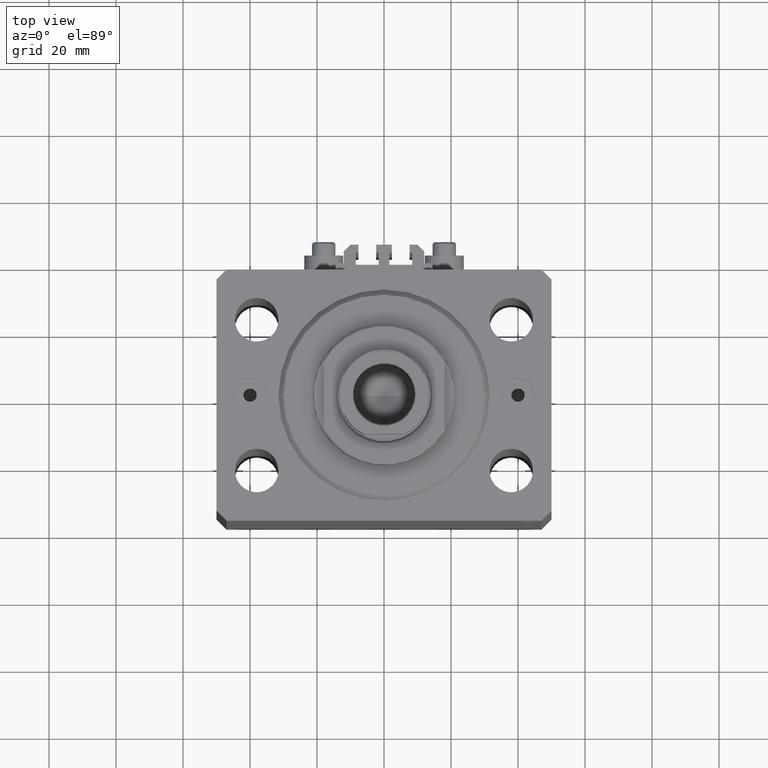
[diagram: clean part render]
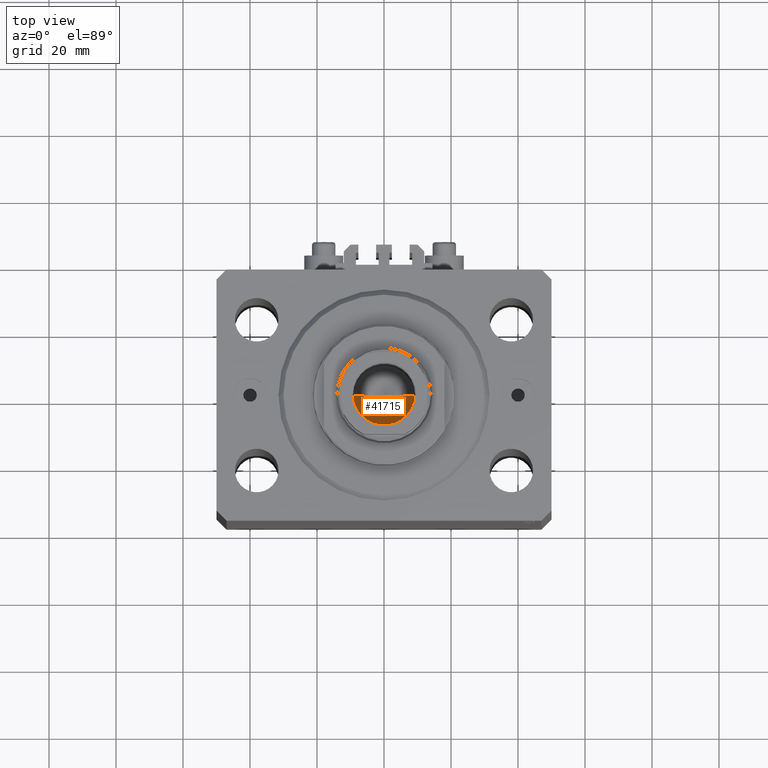
[diagram: same view with one face highlighted and labeled with its STEP entity id]
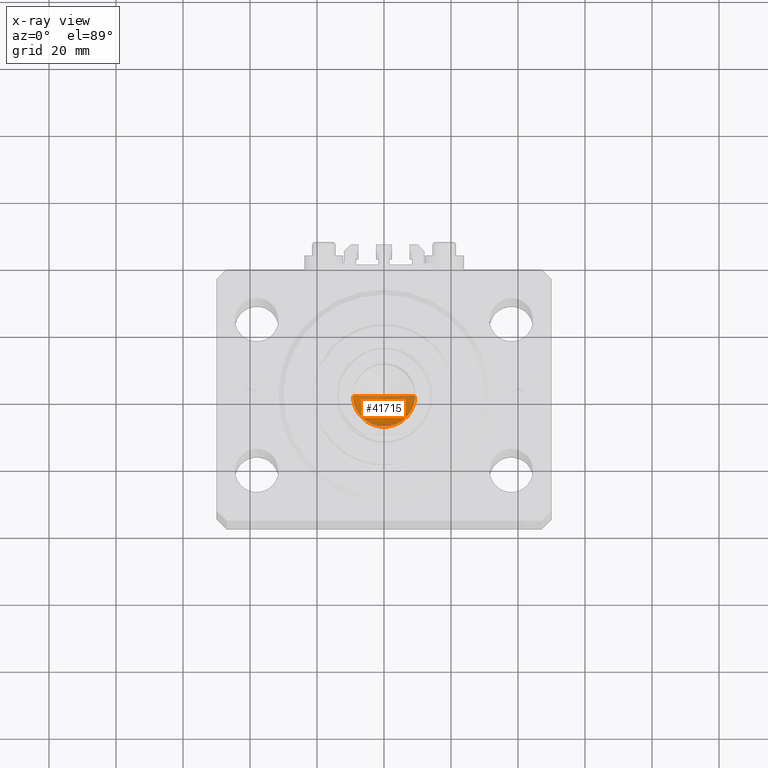
[diagram: x-ray of the same camera — body ghosted, the highlighted face saturated]
A machine part, top view. The second image highlights one B-rep face of the part: STEP entity #41715.
The next image is the same camera in x-ray: the body ghosted, the highlighted face saturated — about 8% of this face is hidden behind the body in this view.
In plain terms, the highlighted conical surface has half-angle 59 deg.
Its self-contained STEP definition (entity closure, byte-faithful):
#841 = EDGE_CURVE ( 'NONE', #9010, #32323, #2702, .T. ) ;
#2138 = DIRECTION ( 'NONE',  ( -0.000000000000000000, -0.000000000000000000, 1.000000000000000000 ) ) ;
#2702 = LINE ( 'NONE', #17017, #34339 ) ;
#6840 = FACE_OUTER_BOUND ( 'NONE', #9779, .T. ) ;
#7368 = CARTESIAN_POINT ( 'NONE',  ( -9.249999999999994671, 1.132798289211300909E-15, 128.1000000000000227 ) ) ;
#9010 = VERTEX_POINT ( 'NONE', #28512 ) ;
#9548 = ORIENTED_EDGE ( 'NONE', *, *, #841, .F. ) ;
#9779 = EDGE_LOOP ( 'NONE', ( #9548, #43466, #27326 ) ) ;
#10102 = EDGE_CURVE ( 'NONE', #9010, #41497, #45673, .T. ) ;
#10177 = CARTESIAN_POINT ( 'NONE',  ( 0.000000000000000000, 0.000000000000000000, 128.1000000000000227 ) ) ;
#13105 = DIRECTION ( 'NONE',  ( 1.000000000000000000, 0.000000000000000000, 0.000000000000000000 ) ) ;
#17017 = CARTESIAN_POINT ( 'NONE',  ( 9.249999999999994671, 0.000000000000000000, 128.1000000000000227 ) ) ;
#17294 = AXIS2_PLACEMENT_3D ( 'NONE', #10177, #39316, #43601 ) ;
#21227 = CIRCLE ( 'NONE', #28863, 9.249999999999994671 ) ;
#23093 = VECTOR ( 'NONE', #38031, 1000.000000000000000 ) ;
#27326 = ORIENTED_EDGE ( 'NONE', *, *, #45480, .T. ) ;
#28512 = CARTESIAN_POINT ( 'NONE',  ( -1.046994375366439223E-14, 0.000000000000000000, 122.5420392739950870 ) ) ;
#28863 = AXIS2_PLACEMENT_3D ( 'NONE', #34844, #2138, #13105 ) ;
#31583 = DIRECTION ( 'NONE',  ( 0.8571673007021117785, 0.000000000000000000, 0.5150380749100550437 ) ) ;
#32323 = VERTEX_POINT ( 'NONE', #45636 ) ;
#34339 = VECTOR ( 'NONE', #31583, 1000.000000000000000 ) ;
#34844 = CARTESIAN_POINT ( 'NONE',  ( 0.000000000000000000, 0.000000000000000000, 128.1000000000000227 ) ) ;
#37887 = CONICAL_SURFACE ( 'NONE', #17294, 9.249999999999994671, 1.029744258676653423 ) ;
#38031 = DIRECTION ( 'NONE',  ( -0.8571673007021117785, 1.049727191138617956E-16, 0.5150380749100550437 ) ) ;
#39316 = DIRECTION ( 'NONE',  ( -0.000000000000000000, -0.000000000000000000, 1.000000000000000000 ) ) ;
#41497 = VERTEX_POINT ( 'NONE', #7368 ) ;
#41626 = CARTESIAN_POINT ( 'NONE',  ( -9.249999999999994671, 1.132798289211300909E-15, 128.1000000000000227 ) ) ;
#41715 = ADVANCED_FACE ( 'NONE', ( #6840 ), #37887, .F. ) ;
#43466 = ORIENTED_EDGE ( 'NONE', *, *, #10102, .T. ) ;
#43601 = DIRECTION ( 'NONE',  ( 1.000000000000000000, 0.000000000000000000, 0.000000000000000000 ) ) ;
#45480 = EDGE_CURVE ( 'NONE', #41497, #32323, #21227, .T. ) ;
#45636 = CARTESIAN_POINT ( 'NONE',  ( 9.249999999999994671, 0.000000000000000000, 128.1000000000000227 ) ) ;
#45673 = LINE ( 'NONE', #41626, #23093 ) ;